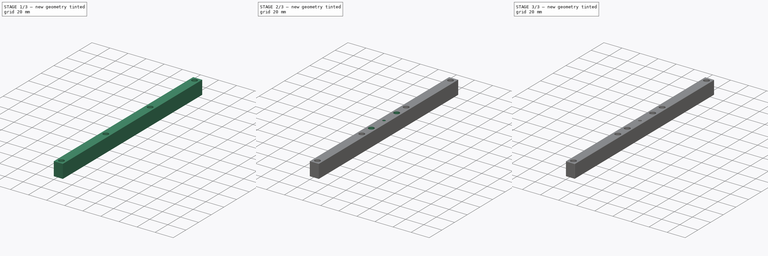
[diagram: build sequence overview — one tinted view per stage of 3, left to right]
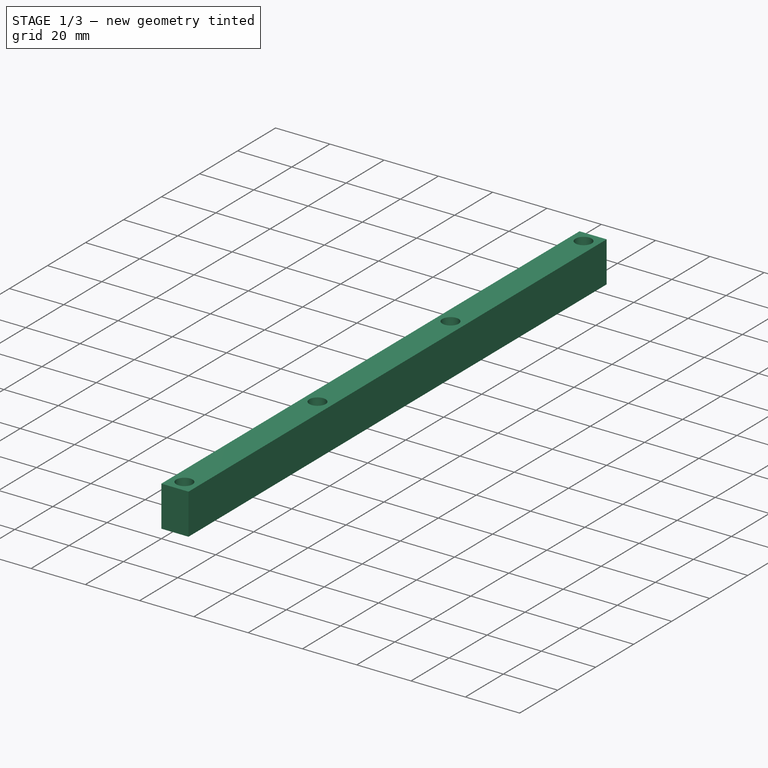
[diagram: stage 1 of 3 — iso view after this stage's code; geometry added in this stage tinted green]
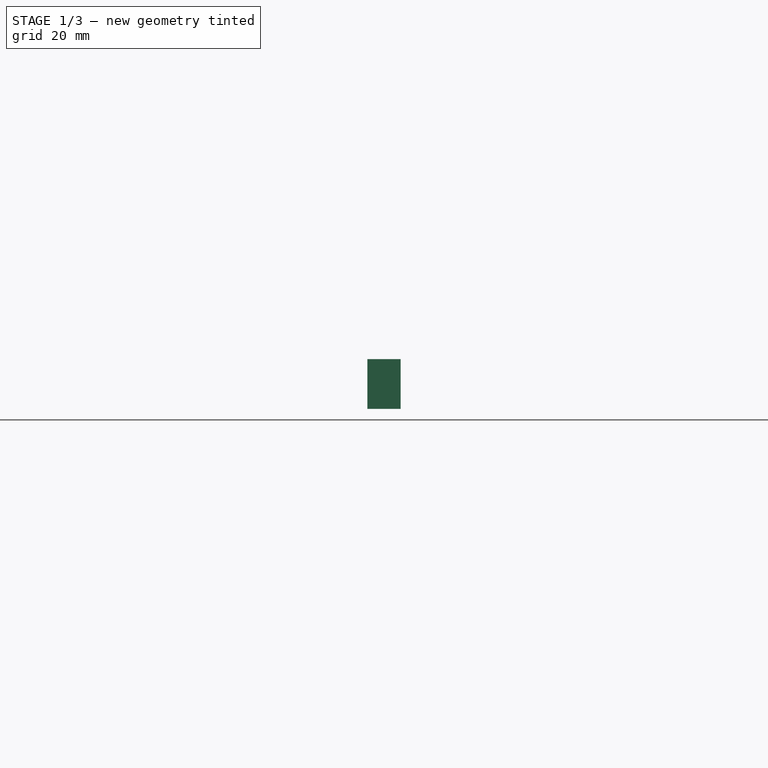
[diagram: stage 1 of 3 — front view after this stage's code; geometry added in this stage tinted green]
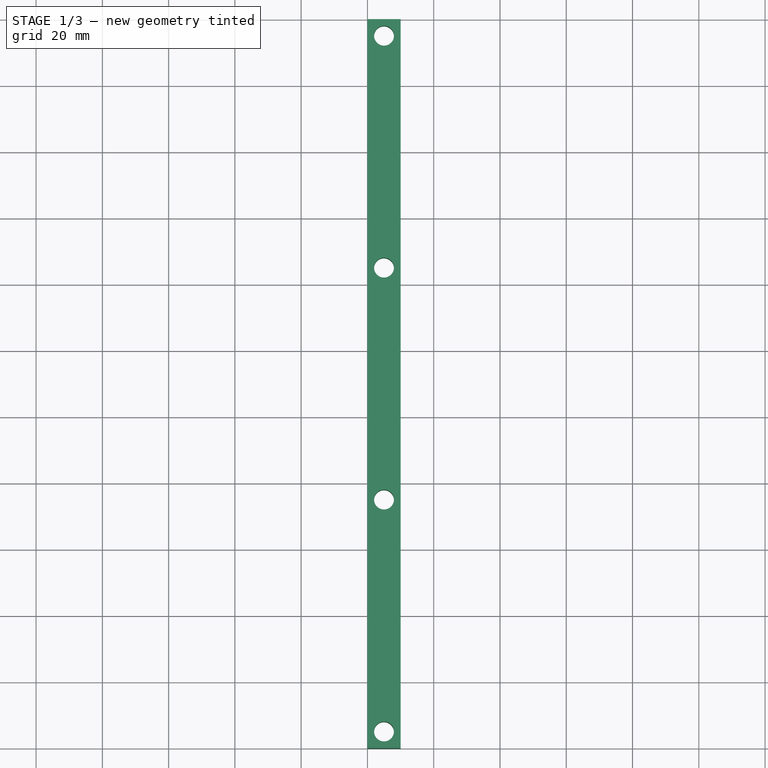
[diagram: stage 1 of 3 — top view after this stage's code; geometry added in this stage tinted green]
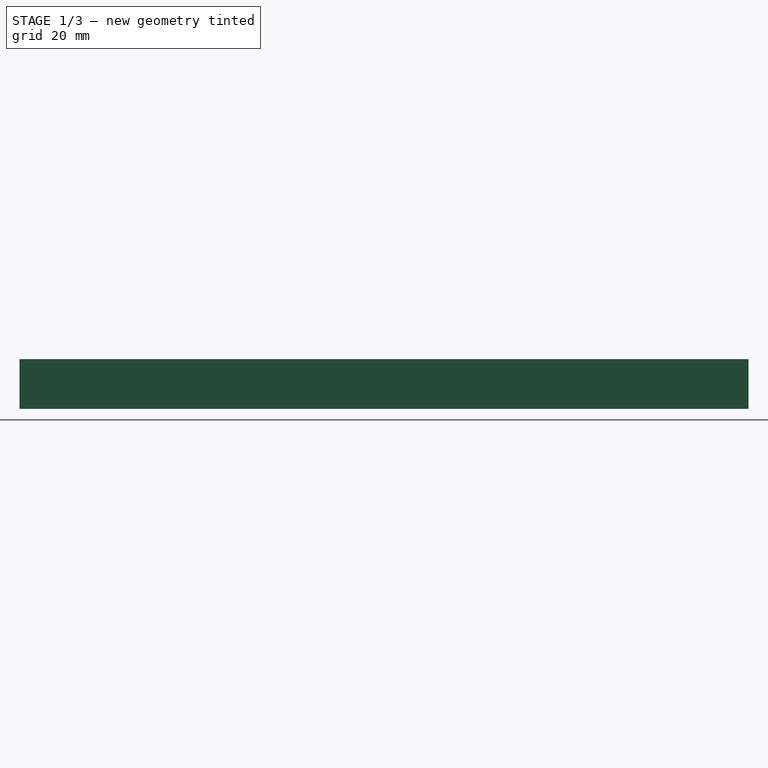
[diagram: stage 1 of 3 — right view after this stage's code; geometry added in this stage tinted green]
FCSTD DOCUMENT  (FreeCAD 0.17R11141 (Git))
Label: fourhead_heater-block
License: All rights reserved
LicenseURL: http://en.wikipedia.org/wiki/All_rights_reserved
objects: Sketcher::SketchObject×4, PartDesign::Pocket×3, PartDesign::Pad×1, PartDesign::Chamfer×1, PartDesign::Body×1
note: 14 computed .brp shape members not serialized (recipe doc carries the construction recipe); baked Part::Feature solids carry a one-line shape summary decoded from their .brp

FEATURE [Sketcher::SketchObject] Sketch
  MapMode = 5
  Placement = pos=(0,0,0) rot=(1,0,0;1.5708rad)
  Support = -> [XZ_Plane]
  sketch-geometry (4):
    g0: LineSegment StartX=0 StartY=0 StartZ=0 EndX=10 EndY=0 EndZ=0
    g1: LineSegment StartX=10 StartY=0 StartZ=0 EndX=10 EndY=15 EndZ=0
    g2: LineSegment StartX=10 StartY=15 StartZ=0 EndX=0 EndY=15 EndZ=0
    g3: LineSegment StartX=0 StartY=15 StartZ=0 EndX=0 EndY=0 EndZ=0
  constraints (11):
    c: Coincident(g0,g1)
    c: Coincident(g1,g2)
    c: Coincident(g2,g3)
    c: Coincident(g3,g0)
    c: Horizontal(g0)
    c: Horizontal(g2)
    c: Vertical(g1)
    c: Vertical(g3)
    c: Coincident(g0,g-1)
    c: DistanceY(g3,g3) = 15
    c: DistanceX(g2,g2) = 10
FEATURE [PartDesign::Pad] Pad  label="bar-size"
  Length = 220
  Length2 = 100
  Placement = pos=(0,0,0) rot=(1,0,0;1.5708rad)
  Profile = -> Sketch
  Type = 0
FEATURE [Sketcher::SketchObject] Sketch001
  ExternalGeometry = -> [Pad]
  MapMode = 5
  Placement = pos=(0,0,15) rot=(0,0,1;3.14159rad)
  Support = -> [Pad]
  sketch-geometry (11):
    g0: LineSegment [constr] StartX=-10 StartY=220 StartZ=0 EndX=-5 EndY=215 EndZ=0
    g1: LineSegment [constr] StartX=-5 StartY=215 StartZ=0 EndX=0 EndY=220 EndZ=0
    g2: LineSegment [constr] StartX=-10 StartY=0 StartZ=0 EndX=-5 EndY=5 EndZ=0
    g3: LineSegment [constr] StartX=-5 StartY=5 StartZ=0 EndX=0 EndY=0 EndZ=0
    g4: LineSegment [constr] StartX=-5 StartY=5 StartZ=0 EndX=-5 EndY=75 EndZ=0
    g5: LineSegment [constr] StartX=-5 StartY=75 StartZ=0 EndX=-5 EndY=145 EndZ=0
    g6: LineSegment [constr] StartX=-5 StartY=145 StartZ=0 EndX=-5 EndY=215 EndZ=0
    g7: Circle CenterX=-5 CenterY=215 CenterZ=0 NormalX=0 NormalY=0 NormalZ=1 Radius=3
    g8: Circle CenterX=-5 CenterY=145 CenterZ=0 NormalX=0 NormalY=0 NormalZ=1 Radius=3
    g9: Circle CenterX=-5 CenterY=75 CenterZ=0 NormalX=0 NormalY=0 NormalZ=1 Radius=3
    g10: Circle CenterX=-5 CenterY=5 CenterZ=0 NormalX=0 NormalY=0 NormalZ=1 Radius=3
  constraints (27):
    c: Coincident(g-3,g0)
    c: Coincident(g0,g1)
    c: Coincident(g1,g-3)
    c: Coincident(g-4,g2)
    c: Coincident(g2,g3)
    c: Coincident(g3,g-1)
    c: Coincident(g2,g4)
    c: Vertical(g4)
    c: Coincident(g4,g5)
    c: Vertical(g5)
    c: Coincident(g5,g6)
    c: Coincident(g6,g0)
    c: Vertical(g6)
    c: Equal(g1,g0)
    c: Equal(g0,g3)
    c: Equal(g3,g2)
    c: Equal(g6,g5)
    c: Equal(g5,g4)
    c: DistanceY(g6,g6) = 70
    c: Coincident(g7,g0)
    c: Coincident(g8,g5)
    c: Coincident(g9,g4)
    c: Coincident(g10,g2)
    c: Equal(g10,g9)
    c: Equal(g9,g8)
    c: Equal(g8,g7)
    c: Radius(g7) = 3
FEATURE [PartDesign::Pocket] Pocket  label="hotend-holes (M6 TAP)"
  BaseFeature = -> Pad
  Length = 5
  Placement = pos=(0,0,0) rot=(1,0,0;1.5708rad)
  Profile = -> Sketch001
  Type = 1
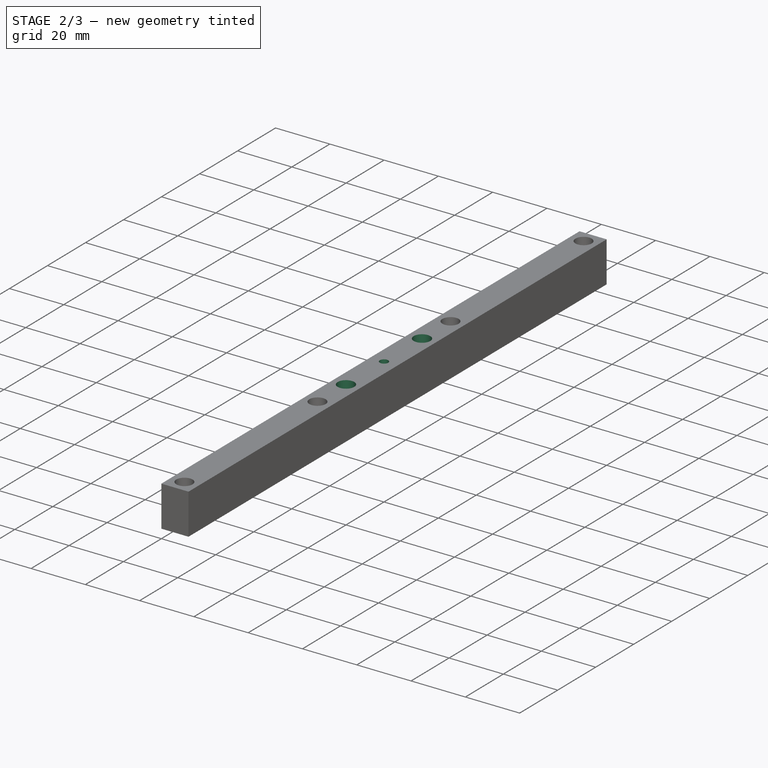
[diagram: stage 2 of 3 — iso view after this stage's code; geometry added in this stage tinted green]
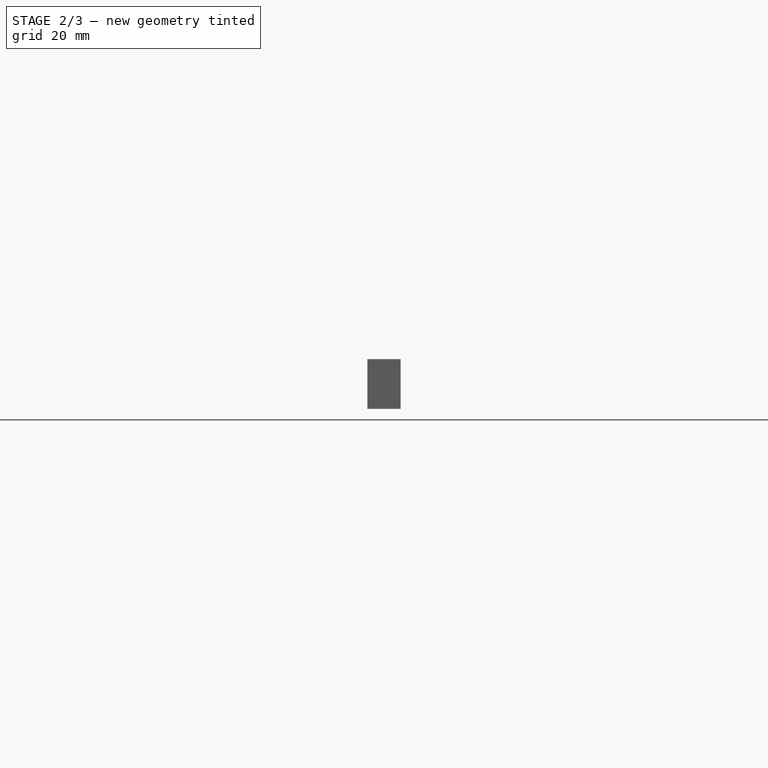
[diagram: stage 2 of 3 — front view after this stage's code; geometry added in this stage tinted green]
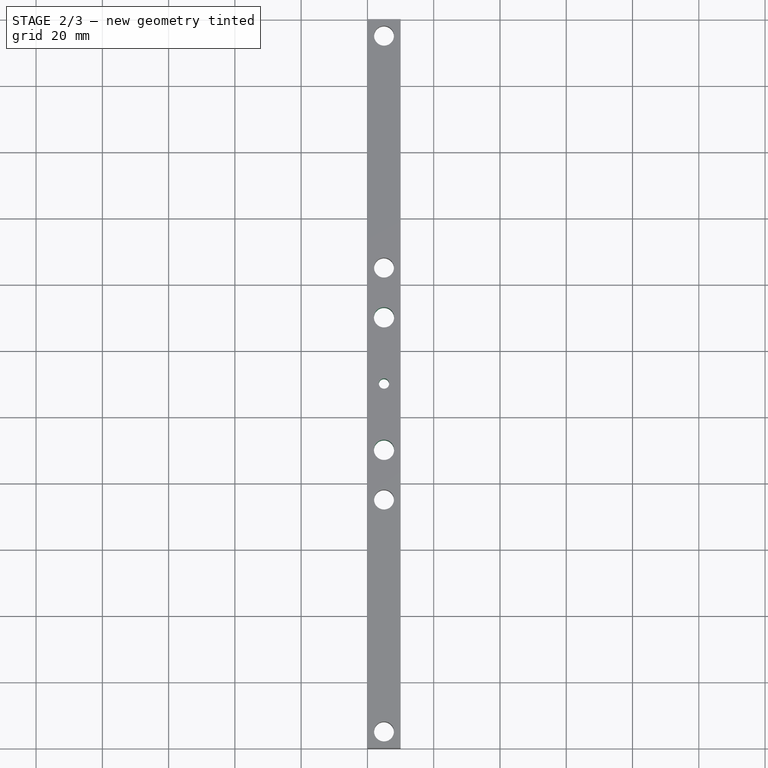
[diagram: stage 2 of 3 — top view after this stage's code; geometry added in this stage tinted green]
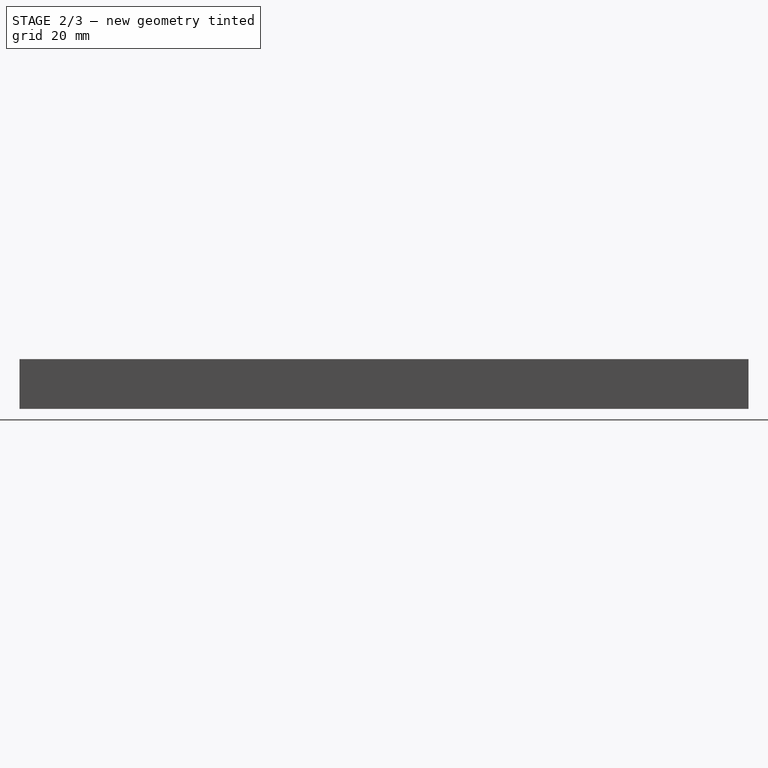
[diagram: stage 2 of 3 — right view after this stage's code; geometry added in this stage tinted green]
FEATURE [Sketcher::SketchObject] Sketch002
  ExternalGeometry = -> [Pocket]
  MapMode = 5
  Placement = pos=(0,0,15) rot=(0,0,1;3.14159rad)
  Support = -> [Pocket]
  sketch-geometry (7):
    g0: LineSegment [constr] StartX=-5 StartY=145 StartZ=0 EndX=-5 EndY=130 EndZ=0
    g1: LineSegment [constr] StartX=-5 StartY=130 StartZ=0 EndX=-5 EndY=110 EndZ=0
    g2: LineSegment [constr] StartX=-5 StartY=110 StartZ=0 EndX=-5 EndY=90 EndZ=0
    g3: LineSegment [constr] StartX=-5 StartY=90 StartZ=0 EndX=-5 EndY=75 EndZ=0
    g4: Circle CenterX=-5 CenterY=130 CenterZ=0 NormalX=0 NormalY=0 NormalZ=1 Radius=3.05
    g5: Circle CenterX=-5 CenterY=110 CenterZ=0 NormalX=0 NormalY=0 NormalZ=1 Radius=1.55
    g6: Circle CenterX=-5 CenterY=90 CenterZ=0 NormalX=0 NormalY=0 NormalZ=1 Radius=3.05
  constraints (17):
    c: Coincident(g0,g-3)
    c: Vertical(g0)
    c: Coincident(g0,g1)
    c: Vertical(g1)
    c: Coincident(g1,g2)
    c: Vertical(g2)
    c: Coincident(g2,g3)
    c: Coincident(g3,g-4)
    c: Equal(g3,g0)
    c: Equal(g1,g2)
    c: DistanceY(g0,g0) = 15
    c: Coincident(g4,g0)
    c: Coincident(g5,g1)
    c: Coincident(g6,g2)
    c: Radius(g5) = 1.55
    c: Radius(g4) = 3.05
    c: Equal(g4,g6)
FEATURE [PartDesign::Pocket] Pocket001  label="heater and temp sensor holes"
  BaseFeature = -> Pocket
  Length = 5
  Placement = pos=(0,0,0) rot=(1,0,0;1.5708rad)
  Profile = -> Sketch002
  Type = 1
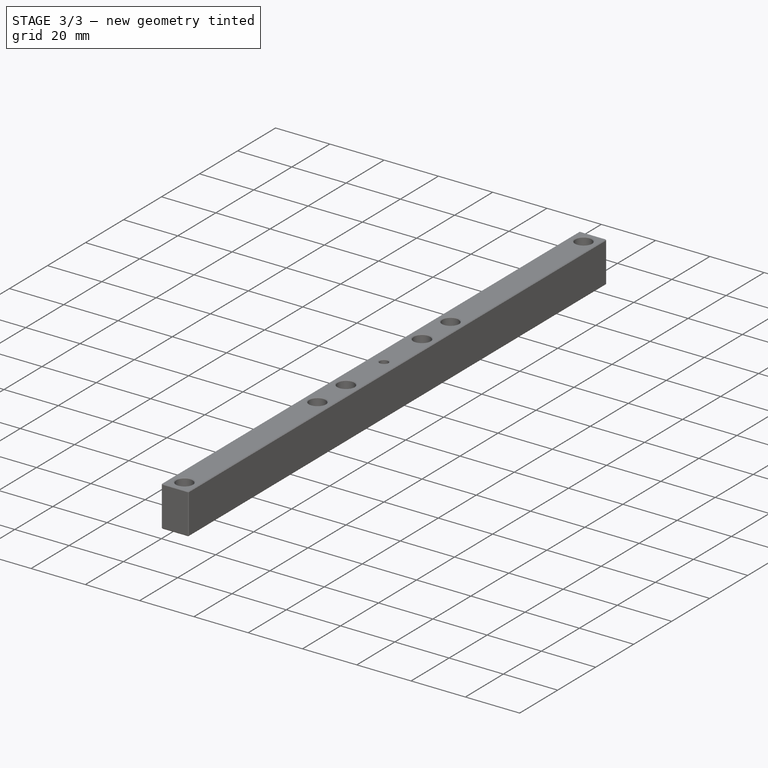
[diagram: stage 3 of 3 — iso view after this stage's code; geometry added in this stage tinted green]
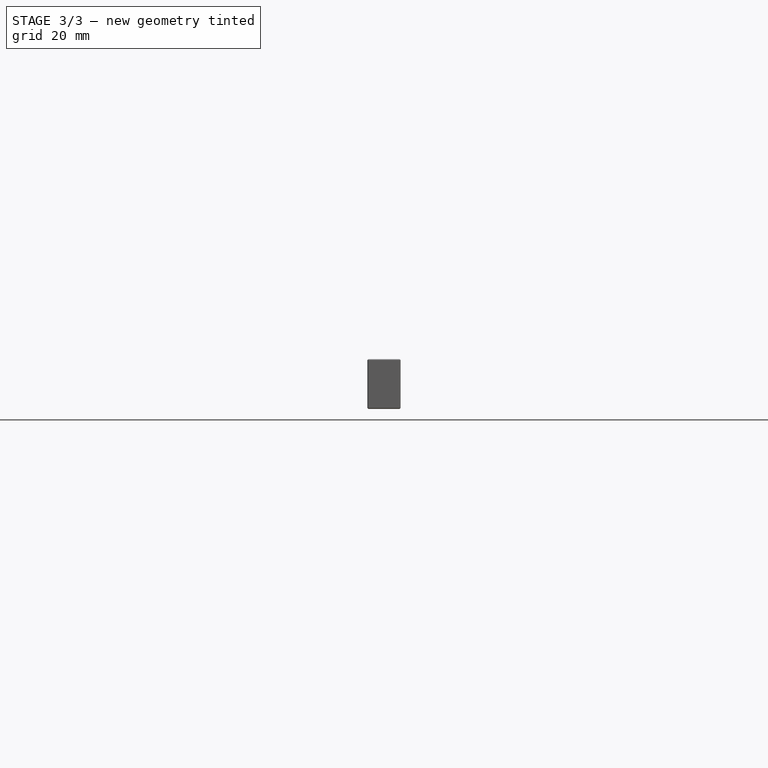
[diagram: stage 3 of 3 — front view after this stage's code; geometry added in this stage tinted green]
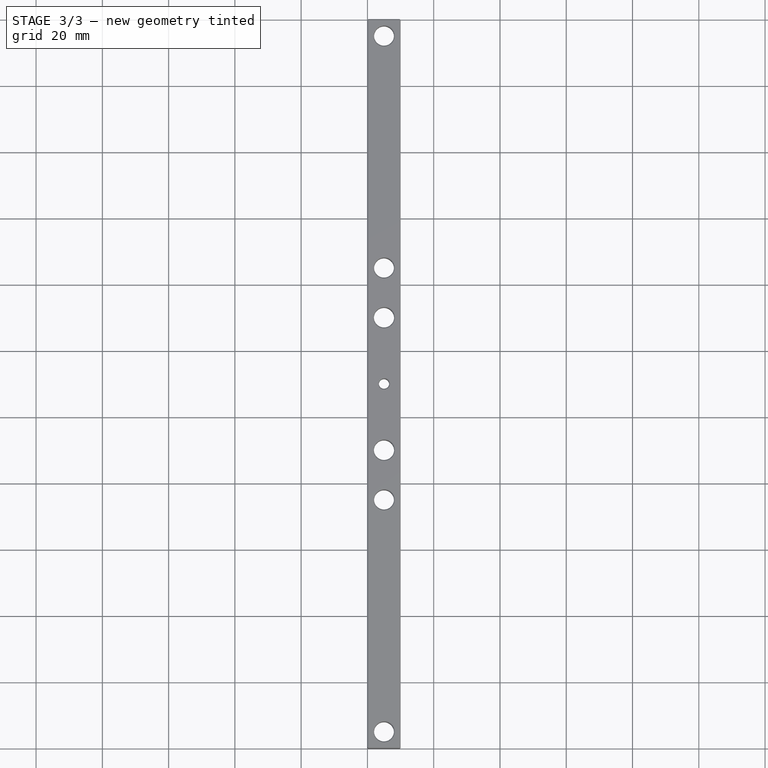
[diagram: stage 3 of 3 — top view after this stage's code; geometry added in this stage tinted green]
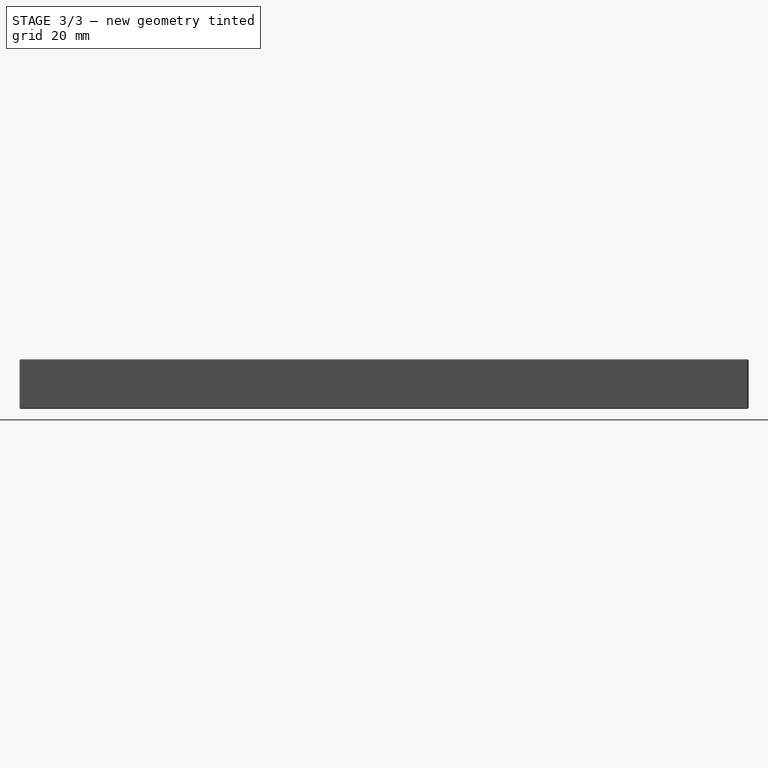
[diagram: stage 3 of 3 — right view after this stage's code; geometry added in this stage tinted green]
FEATURE [Sketcher::SketchObject] Sketch003
  ExternalGeometry = -> [Pocket001]
  MapMode = 5
  Placement = pos=(0,0,0) rot=(0.707107,0,-0.707107;3.14159rad)
  Support = -> [Pocket001]
  sketch-geometry (7):
    g0: LineSegment [constr] StartX=-15 StartY=145 StartZ=0 EndX=-7.5 EndY=130 EndZ=0
    g1: LineSegment [constr] StartX=-7.5 StartY=130 StartZ=0 EndX=0 EndY=145 EndZ=0
    g2: LineSegment [constr] StartX=-7.5 StartY=130 StartZ=0 EndX=-7.5 EndY=110 EndZ=0
    g3: LineSegment [constr] StartX=-7.5 StartY=110 StartZ=0 EndX=-7.5 EndY=90 EndZ=0
    g4: Circle CenterX=-7.5 CenterY=130 CenterZ=0 NormalX=0 NormalY=0 NormalZ=1 Radius=1.5
    g5: Circle CenterX=-7.5 CenterY=110 CenterZ=0 NormalX=0 NormalY=0 NormalZ=1 Radius=1.5
    g6: Circle CenterX=-7.5 CenterY=90 CenterZ=0 NormalX=0 NormalY=0 NormalZ=1 Radius=1.5
  constraints (17):
    c: Coincident(g-3,g0)
    c: PointOnObject(g0,g-4)
    c: Coincident(g0,g1)
    c: Coincident(g1,g-3)
    c: Equal(g0,g1)
    c: Coincident(g0,g2)
    c: PointOnObject(g2,g-5)
    c: Vertical(g2)
    c: Coincident(g2,g3)
    c: PointOnObject(g3,g-6)
    c: Vertical(g3)
    c: Coincident(g4,g0)
    c: Coincident(g5,g2)
    c: Coincident(g6,g3)
    c: Equal(g4,g5)
    c: Equal(g5,g6)
    c: Radius(g4) = 1.5
FEATURE [PartDesign::Pocket] Pocket002  label="M3 set screw holes"
  BaseFeature = -> Pocket001
  Length = 5
  Placement = pos=(0,0,0) rot=(1,0,0;1.5708rad)
  Profile = -> Sketch003
  Type = 0
FEATURE [PartDesign::Chamfer] Chamfer  label="edge break"
  Base = -> Pocket002 [Face2,Face13,Face4,Face1,Face5,Face3]
  BaseFeature = -> Pocket002
  Placement = pos=(0,0,0) rot=(1,0,0;1.5708rad)
  Size = 0.25
FEATURE [PartDesign::Body] Body
  Group = -> [Sketch,Pad,Sketch001,Pocket,Sketch002,Pocket001,Sketch003,Pocket002,Chamfer]
  Origin = -> BodyOrigin
  Tip = -> Chamfer
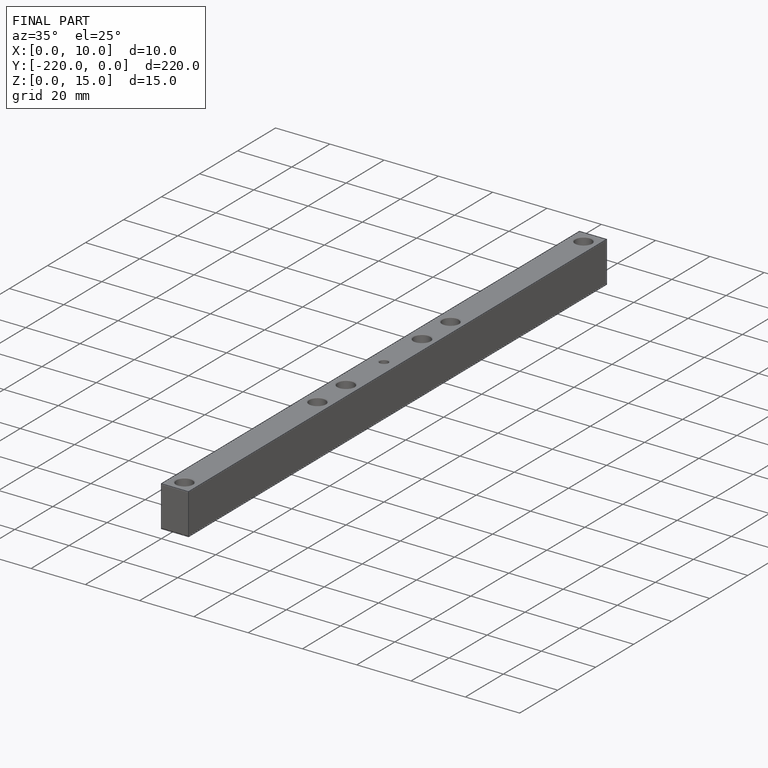
[diagram: finished part — iso view with bounding-box wireframe]
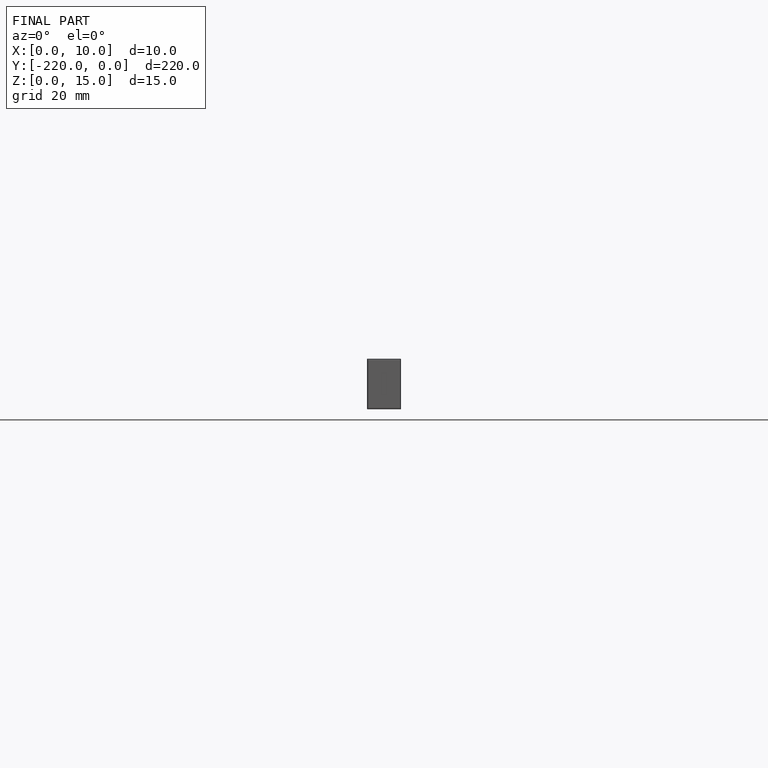
[diagram: finished part — front view with bounding-box wireframe]
